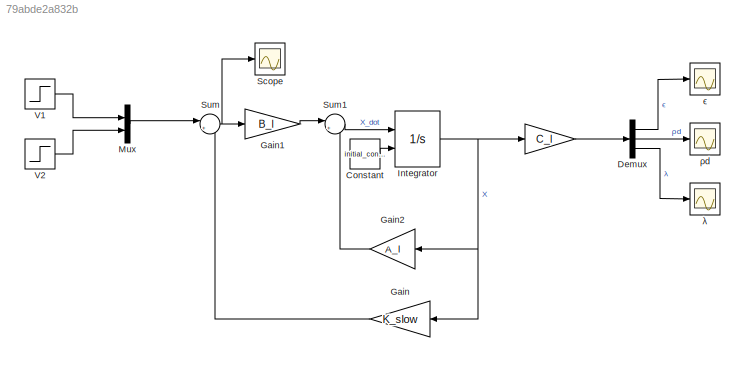
MODEL slx_79abde2a832b
KIND model
CONFIG AbsTol = auto
CONFIG EnableMultiTasking = off
CONFIG FixedStep = auto
CONFIG MaxStep = auto
CONFIG MinStep = auto
CONFIG RelTol = 1e-3
CONFIG SampleTimeConstraint = Unconstrained
CONFIG Solver = VariableStepAuto
CONFIG SolverName = VariableStepAuto
CONFIG StartTime = 0.0
CONFIG StopTime = 6
BLOCK [Gain]  
  Gain = C_l
  Multiplication = Matrix(K*u)
BLOCK [Constant] Constant
  Value = initial_condition
BLOCK [Demux] Demux
  Outputs = 3
  Ports = [1, 3]
BLOCK [Gain] Gain
  Gain = K_slow
  Multiplication = Matrix(K*u)
BLOCK [Gain] Gain1
  Gain = B_l
  Multiplication = Matrix(K*u)
BLOCK [Gain] Gain2
  Gain = A_l
  Multiplication = Matrix(K*u)
BLOCK [Integrator] Integrator
  InitialCondition = initial_condition
  InitialConditionSource = external
  Ports = [2, 1]
BLOCK [Mux] Mux
  DisplayOption = bar
  Inputs = 2
  Ports = [2, 1]
BLOCK [Scope] Scope
  Floating = off
  NumInputPorts = 1
  Ports = [1]
  ScopeSpecificationString = Simulink.scopes.TimeScopeBlockCfg('CurrentConfiguration', extmgr.ConfigurationSet(extmgr.Configuration('Core','General UI',true),extmgr.Configuration('Core','Source UI',true),extmgr.Configuration('Sources','WiredSimulink',true,'DataLoggingVariableName','ScopeData1'),extmgr.Configuration('Visuals','Time Domain',true,'SerializedDisplays',{struct('MinYLimReal','-37.25348','MaxYLimReal','187.65865','Y...<+1478ch>
BLOCK [Sum] Sum
  Inputs = |+-
  Ports = [2, 1]
BLOCK [Sum] Sum1
  Inputs = |++
  Ports = [2, 1]
BLOCK [Step] V1
  After = 0
  SampleTime = 0
  Time = 0
BLOCK [Step] V2
  After = 0
  SampleTime = 0
BLOCK [Scope] λ
  Floating = off
  NumInputPorts = 1
  Ports = [1]
  ScopeSpecificationString = Simulink.scopes.TimeScopeBlockCfg('CurrentConfiguration', extmgr.ConfigurationSet(extmgr.Configuration('Core','General UI',true),extmgr.Configuration('Core','Source UI',true),extmgr.Configuration('Sources','WiredSimulink',true,'DataLoggingVariableName','ScopeData2'),extmgr.Configuration('Visuals','Time Domain',true,'SerializedDisplays',{struct('MinYLimReal','-0.01148','MaxYLimReal','0.09794','YLab...<+1389ch>
BLOCK [Scope] ρd
  Floating = off
  NumInputPorts = 1
  Ports = [1]
  ScopeSpecificationString = Simulink.scopes.TimeScopeBlockCfg('CurrentConfiguration', extmgr.ConfigurationSet(extmgr.Configuration('Core','General UI',true),extmgr.Configuration('Core','Source UI',true),extmgr.Configuration('Sources','WiredSimulink',true,'DataLoggingVariableName','ScopeData1'),extmgr.Configuration('Visuals','Time Domain',true,'SerializedDisplays',{struct('MinYLimReal','-0.60221','MaxYLimReal','0.22072','YLab...<+1459ch>
BLOCK [Scope] ϵ
  Floating = off
  NumInputPorts = 1
  Ports = [1]
  ScopeSpecificationString = Simulink.scopes.TimeScopeBlockCfg('CurrentConfiguration', extmgr.ConfigurationSet(extmgr.Configuration('Core','General UI',true),extmgr.Configuration('Core','Source UI',true),extmgr.Configuration('Sources','WiredSimulink',true),extmgr.Configuration('Visuals','Time Domain',true,'SerializedDisplays',{struct('MinYLimReal','-0.03554','MaxYLimReal','0.30754','YLabelReal','','MinYLimMag','0.00000','MaxY...<+1376ch>
LINE  :1 -> Demux:1
LINE Constant:1 -> Integrator:2
LINE Demux:1 -> ϵ:1
LINE Demux:2 -> ρd:1
LINE Demux:3 -> λ:1
LINE Gain1:1 -> Sum1:1
LINE Gain2:1 -> Sum1:2
LINE Gain:1 -> Sum:2
NET Integrator:1 ->  :1, Gain2:1, Gain:1
LINE Mux:1 -> Sum:1
LINE Sum1:1 -> Integrator:1
NET Sum:1 -> Gain1:1, Scope:1
LINE V1:1 -> Mux:1
LINE V2:1 -> Mux:2
note: NET lines group one-source signal fan-out (src -> all destinations, sorted); 1:1 wires keep LINE
